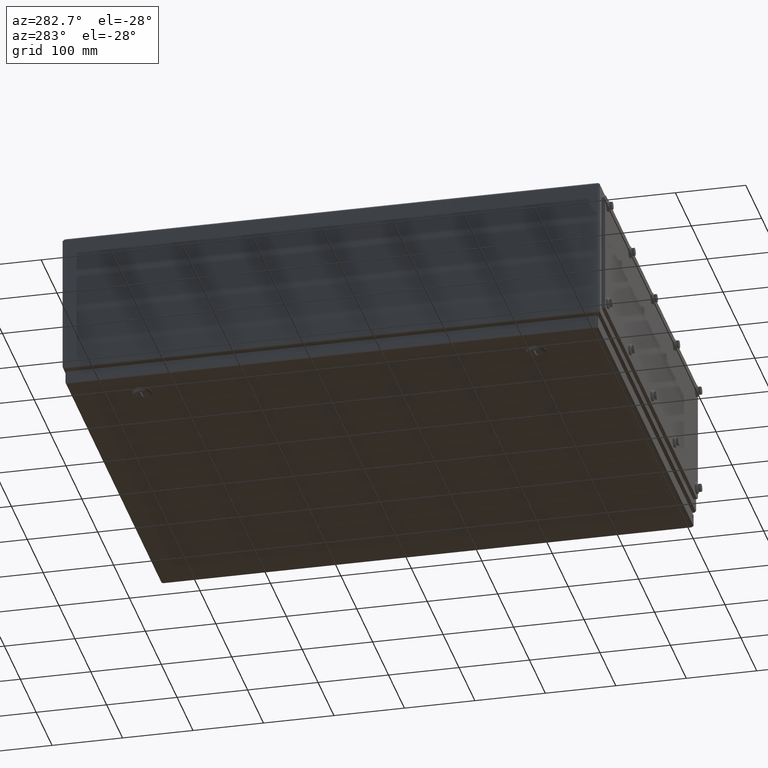
[diagram: clean part render]
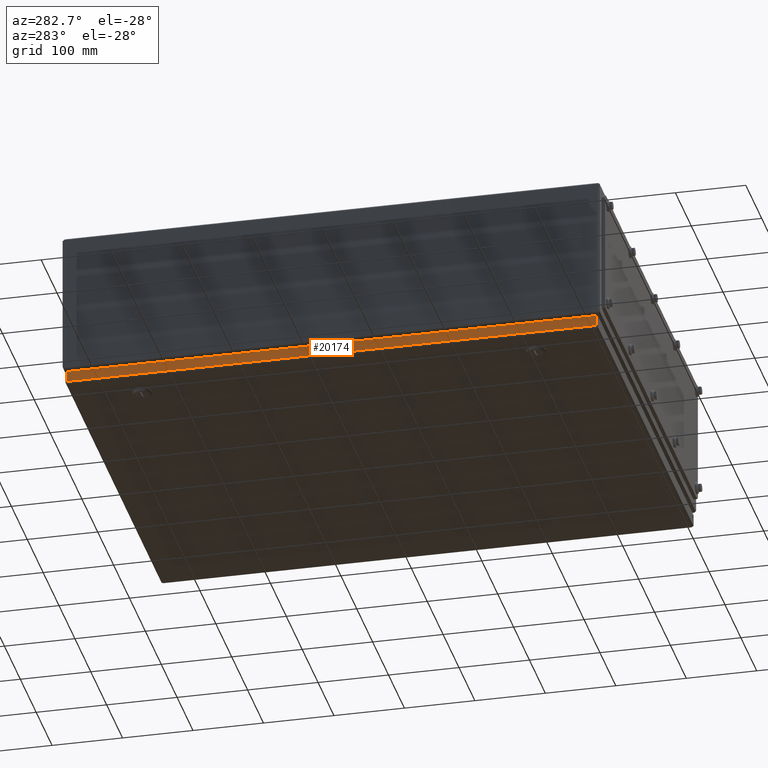
[diagram: same view with one face highlighted and labeled with its STEP entity id]
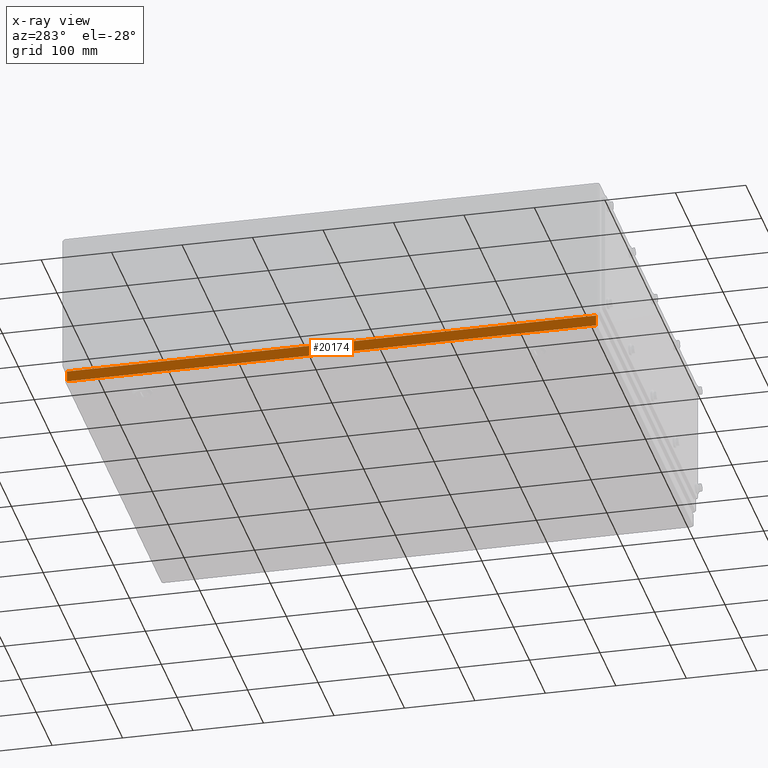
[diagram: x-ray of the same camera — body ghosted, the highlighted face saturated]
A machine part, auxiliary view. The second image highlights one B-rep face of the part: STEP entity #20174.
The next image is the same camera in x-ray: the body ghosted, the highlighted face saturated — about 0% of this face is hidden behind the body in this view.
In plain terms, the highlighted planar face has unit normal (1, 0, -0).
Its self-contained STEP definition (entity closure, byte-faithful):
#1349=PLANE('',#21843);
#1858=FACE_OUTER_BOUND('',#3030,.T.);
#3030=EDGE_LOOP('',(#13329,#13330,#13331,#13332));
#4392=LINE('',#30190,#5884);
#4398=LINE('',#30218,#5890);
#4403=LINE('',#30280,#5895);
#4405=LINE('',#30283,#5897);
#5884=VECTOR('',#24177,0.393700787401575);
#5890=VECTOR('',#24187,0.393700787401575);
#5895=VECTOR('',#24194,0.393700787401575);
#5897=VECTOR('',#24198,0.393700787401575);
#8357=VERTEX_POINT('',#30188);
#8358=VERTEX_POINT('',#30189);
#8364=VERTEX_POINT('',#30217);
#8366=VERTEX_POINT('',#30279);
#10267=EDGE_CURVE('',#8357,#8358,#4392,.T.);
#10275=EDGE_CURVE('',#8364,#8358,#4398,.T.);
#10282=EDGE_CURVE('',#8357,#8366,#4403,.T.);
#10284=EDGE_CURVE('',#8366,#8364,#4405,.T.);
#13329=ORIENTED_EDGE('',*,*,#10267,.T.);
#13330=ORIENTED_EDGE('',*,*,#10275,.F.);
#13331=ORIENTED_EDGE('',*,*,#10284,.F.);
#13332=ORIENTED_EDGE('',*,*,#10282,.F.);
#20174=ADVANCED_FACE('',(#1858),#1349,.F.);
#21843=AXIS2_PLACEMENT_3D('',#30284,#24199,#24200);
#24177=DIRECTION('',(3.04679127209989E-16,-1.,-9.07813880370802E-35));
#24187=DIRECTION('',(6.12323399573677E-17,0.,-1.));
#24194=DIRECTION('',(-6.12323399573677E-17,0.,1.));
#24198=DIRECTION('',(3.03945182983501E-16,-1.,-2.37623755965221E-16));
#24199=DIRECTION('center_axis',(1.,3.04679127209989E-16,9.18988202319192E-17));
#24200=DIRECTION('ref_axis',(9.18988202319193E-17,-3.06161699786838E-16,
-1.));
#30188=CARTESIAN_POINT('',(2.64879178884387E-15,29.664951456544,0.120875000000007));
#30189=CARTESIAN_POINT('',(1.16613155763459E-14,0.0850485434560525,0.120875));
#30190=CARTESIAN_POINT('',(7.15232183460121E-15,14.875,0.120875));
#30217=CARTESIAN_POINT('',(1.160216264332E-14,0.0850485434560501,0.73));
#30218=CARTESIAN_POINT('',(1.16066786164726E-14,0.0850485434560501,0.120875));
#30279=CARTESIAN_POINT('',(2.58963885581802E-15,29.664951456544,0.730000000000007));
#30280=CARTESIAN_POINT('',(2.6160096129199E-15,29.664951456544,0.120875000000007));
#30283=CARTESIAN_POINT('',(2.57871146384337E-15,29.664951456544,0.730000000000007));
#30284=CARTESIAN_POINT('Origin',(7.1289009897196E-15,14.875,0.369523033232373));